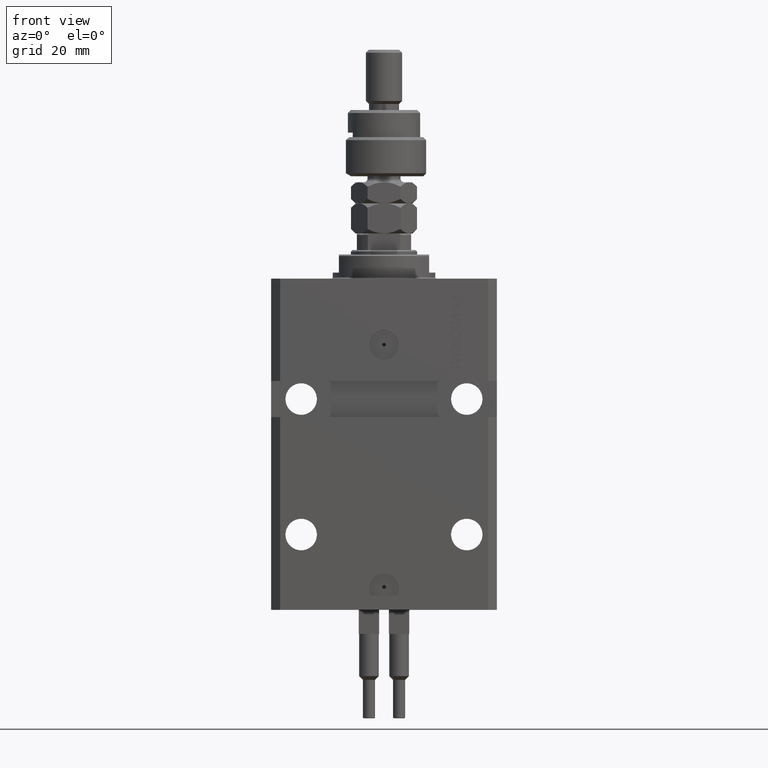
[diagram: clean part render]
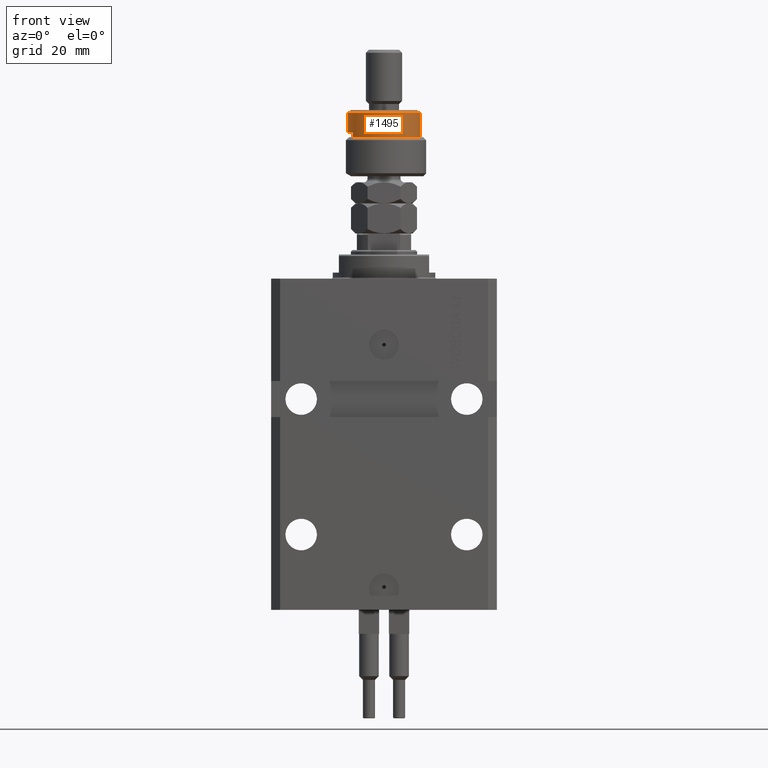
[diagram: same view with one face highlighted and labeled with its STEP entity id]
A machine part, front view. The second image highlights one B-rep face of the part: STEP entity #1495.
In plain terms, the highlighted cylindrical surface (edge-blend (fillet) strip) has radius 12 mm, axis along (-0, -0, -1).
Its self-contained STEP definition (entity closure, byte-faithful):
#819 = DIRECTION ( 'NONE',  ( -1.000000000000000000, 0.000000000000000000, 0.000000000000000000 ) ) ;
#1053 = AXIS2_PLACEMENT_3D ( 'NONE', #35843, #27604, #16232 ) ;
#1495 = ADVANCED_FACE ( 'NONE', ( #42408 ), #25641, .T. ) ;
#1867 = CIRCLE ( 'NONE', #1053, 12.00000000000000178 ) ;
#3071 = VERTEX_POINT ( 'NONE', #30241 ) ;
#3423 = EDGE_CURVE ( 'NONE', #24198, #17522, #29339, .T. ) ;
#4227 = VECTOR ( 'NONE', #43671, 1000.000000000000000 ) ;
#4879 = CARTESIAN_POINT ( 'NONE',  ( -10.39230484541326582, -5.999999999999998224, 14.50000000000000000 ) ) ;
#5484 = DIRECTION ( 'NONE',  ( -0.000000000000000000, -0.000000000000000000, -1.000000000000000000 ) ) ;
#6024 = DIRECTION ( 'NONE',  ( -1.000000000000000000, 0.000000000000000000, 0.000000000000000000 ) ) ;
#7713 = DIRECTION ( 'NONE',  ( -0.000000000000000000, -0.000000000000000000, -1.000000000000000000 ) ) ;
#9734 = VECTOR ( 'NONE', #5484, 1000.000000000000000 ) ;
#9944 = EDGE_LOOP ( 'NONE', ( #14574, #45409, #47097, #24157, #35896, #32570 ) ) ;
#10153 = CARTESIAN_POINT ( 'NONE',  ( 0.000000000000000000, 0.000000000000000000, 22.00000000000000000 ) ) ;
#11908 = EDGE_CURVE ( 'NONE', #37402, #17522, #49310, .T. ) ;
#11961 = CARTESIAN_POINT ( 'NONE',  ( -10.39230484541326760, -6.000000000000000000, 22.00000000000000000 ) ) ;
#14463 = AXIS2_PLACEMENT_3D ( 'NONE', #10153, #42146, #6024 ) ;
#14574 = ORIENTED_EDGE ( 'NONE', *, *, #40673, .F. ) ;
#16232 = DIRECTION ( 'NONE',  ( 1.000000000000000000, 0.000000000000000000, 0.000000000000000000 ) ) ;
#16659 = CARTESIAN_POINT ( 'NONE',  ( -12.00000000000000178, 0.000000000000000000, 14.50000000000000000 ) ) ;
#17522 = VERTEX_POINT ( 'NONE', #16659 ) ;
#18693 = VECTOR ( 'NONE', #7713, 1000.000000000000000 ) ;
#19067 = CARTESIAN_POINT ( 'NONE',  ( -10.39230484541326760, -6.000000000000000000, 13.00000000000000000 ) ) ;
#19662 = DIRECTION ( 'NONE',  ( 0.000000000000000000, 0.000000000000000000, -1.000000000000000000 ) ) ;
#21614 = CARTESIAN_POINT ( 'NONE',  ( 12.00000000000000178, 1.469576158976824144E-15, 13.00000000000000000 ) ) ;
#24157 = ORIENTED_EDGE ( 'NONE', *, *, #3423, .F. ) ;
#24198 = VERTEX_POINT ( 'NONE', #4879 ) ;
#24628 = DIRECTION ( 'NONE',  ( 0.000000000000000000, 0.000000000000000000, -1.000000000000000000 ) ) ;
#25641 = CYLINDRICAL_SURFACE ( 'NONE', #14463, 12.00000000000000178 ) ;
#26872 = AXIS2_PLACEMENT_3D ( 'NONE', #43398, #19662, #819 ) ;
#27604 = DIRECTION ( 'NONE',  ( 0.000000000000000000, 0.000000000000000000, 1.000000000000000000 ) ) ;
#28446 = EDGE_CURVE ( 'NONE', #33283, #50265, #1867, .T. ) ;
#28929 = CARTESIAN_POINT ( 'NONE',  ( -12.00000000000000178, 0.000000000000000000, 20.99999999999998224 ) ) ;
#29339 = CIRCLE ( 'NONE', #26872, 12.00000000000000178 ) ;
#29539 = CARTESIAN_POINT ( 'NONE',  ( 0.000000000000000000, 0.000000000000000000, 20.99999999999998224 ) ) ;
#30241 = CARTESIAN_POINT ( 'NONE',  ( 12.00000000000000178, 1.469576158976824144E-15, 20.99999999999998224 ) ) ;
#30832 = LINE ( 'NONE', #11961, #4227 ) ;
#32570 = ORIENTED_EDGE ( 'NONE', *, *, #28446, .T. ) ;
#32902 = EDGE_CURVE ( 'NONE', #3071, #37402, #36511, .T. ) ;
#33283 = VERTEX_POINT ( 'NONE', #19067 ) ;
#34583 = CARTESIAN_POINT ( 'NONE',  ( 12.00000000000000178, 1.469576158976824144E-15, 22.00000000000000000 ) ) ;
#35089 = LINE ( 'NONE', #34583, #18693 ) ;
#35664 = AXIS2_PLACEMENT_3D ( 'NONE', #29539, #24628, #36500 ) ;
#35843 = CARTESIAN_POINT ( 'NONE',  ( 0.000000000000000000, 0.000000000000000000, 13.00000000000000000 ) ) ;
#35896 = ORIENTED_EDGE ( 'NONE', *, *, #44598, .T. ) ;
#36500 = DIRECTION ( 'NONE',  ( 1.000000000000000000, 0.000000000000000000, 0.000000000000000000 ) ) ;
#36511 = CIRCLE ( 'NONE', #35664, 12.00000000000000178 ) ;
#37402 = VERTEX_POINT ( 'NONE', #28929 ) ;
#40673 = EDGE_CURVE ( 'NONE', #3071, #50265, #35089, .T. ) ;
#40814 = CARTESIAN_POINT ( 'NONE',  ( -12.00000000000000178, 0.000000000000000000, 22.00000000000000000 ) ) ;
#42146 = DIRECTION ( 'NONE',  ( -0.000000000000000000, -0.000000000000000000, -1.000000000000000000 ) ) ;
#42408 = FACE_OUTER_BOUND ( 'NONE', #9944, .T. ) ;
#43398 = CARTESIAN_POINT ( 'NONE',  ( 0.000000000000000000, 0.000000000000000000, 14.50000000000000000 ) ) ;
#43671 = DIRECTION ( 'NONE',  ( -0.000000000000000000, -0.000000000000000000, -1.000000000000000000 ) ) ;
#44598 = EDGE_CURVE ( 'NONE', #24198, #33283, #30832, .T. ) ;
#45409 = ORIENTED_EDGE ( 'NONE', *, *, #32902, .T. ) ;
#47097 = ORIENTED_EDGE ( 'NONE', *, *, #11908, .T. ) ;
#49310 = LINE ( 'NONE', #40814, #9734 ) ;
#50265 = VERTEX_POINT ( 'NONE', #21614 ) ;